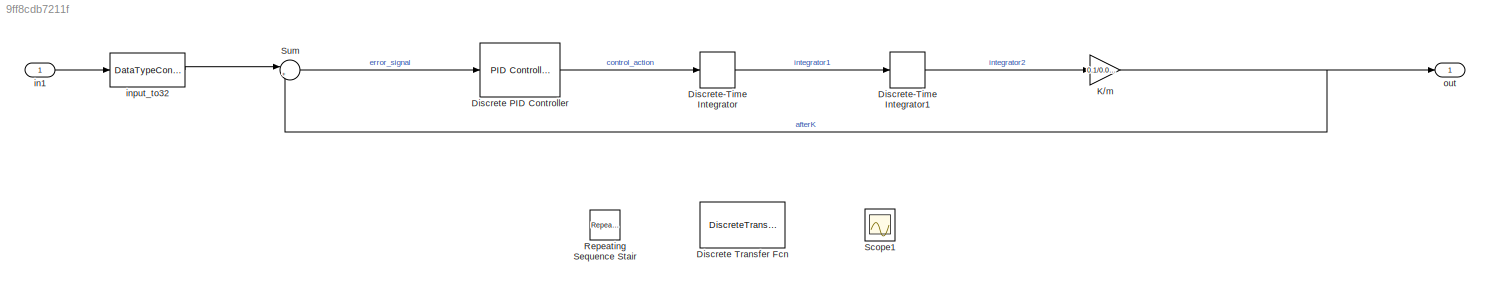
MODEL slx_9ff8cdb7211f
KIND model
CONFIG AbsTol = auto
CONFIG EnableMultiTasking = off
CONFIG FixedStep = auto
CONFIG MaxStep = auto
CONFIG MinStep = auto
CONFIG RelTol = 1e-3
CONFIG SampleTimeConstraint = Unconstrained
CONFIG SolverName = FixedStepDiscrete
CONFIG StartTime = 0.0
CONFIG StopTime = 2000
BLOCK [Reference] Discrete PID Controller  REF=slpidlib/PID Controller
  LibrarySourceBlock = hdlsllib/HDL Floating Point\nOperations/Discrete PID Controller
  SourceBlock = slpidlib/PID Controller
  SourceType = PID 1dof
BLOCK [DiscreteTransferFcn] Discrete Transfer Fcn
  Commented = on
  DenAccumDataTypeStr = fixdt(1,16,0, 'DataTypeOverride', 'Off')
  DenCoefDataTypeStr = fixdt(1,16,0, 'DataTypeOverride', 'Off')
  DenCoefMax = 4095
  DenCoefMin = 0
  DenProductDataTypeStr = fixdt(1,16,-2, 'DataTypeOverride', 'Off')
  Denominator = [1 -2 1]
  InitialStates = 2
  InputPortMap = u0
  NumAccumDataTypeStr = fixdt(1,16,0, 'DataTypeOverride', 'Off')
  NumCoefDataTypeStr = fixdt(1,16,0, 'DataTypeOverride', 'Off')
  NumCoefMax = 4095
  NumCoefMin = 0
  NumProductDataTypeStr = fixdt(1,16,0, 'DataTypeOverride', 'Off')
  OutDataTypeStr = fixdt(1,16,0, 'DataTypeOverride', 'Off')
  OutMax = 4095
  OutMin = 0
  StateDataTypeStr = fixdt(1,16,0, 'DataTypeOverride', 'Off')
  a0EqualsOne = on
BLOCK [DiscreteIntegrator] Discrete-Time Integrator
  ICPrevOutput = DiscIntNeverNeededParam
  ICPrevScaledInput = DiscIntNeverNeededParam
  InitialConditionSetting = Auto
  OutDataTypeStr = fixdt(1,32,16, 'DataTypeOverride', 'Off')
  OutMax = 4095
  OutMin = -4095
  SampleTime = 0.0078125
BLOCK [DiscreteIntegrator] Discrete-Time Integrator1
  ICPrevOutput = DiscIntNeverNeededParam
  ICPrevScaledInput = DiscIntNeverNeededParam
  InitialConditionSetting = Auto
  OutDataTypeStr = fixdt(1,32,16, 'DataTypeOverride', 'Off')
  OutMax = 4095
  OutMin = -4095
  SampleTime = 0.0078125
BLOCK [Gain] K//m
  Gain = 0.1/0.0027
  OutDataTypeStr = fixdt(1,32,16, 'DataTypeOverride', 'Off')
  ParamDataTypeStr = fixdt(1,32,16, 'DataTypeOverride', 'Off')
BLOCK [Reference] Repeating Sequence Stair  REF=simulink/Sources/Repeating
Sequence
Stair
  Commented = on
  LibrarySourceBlock = hdlsllib/Sources/Repeating\nSequence\nStair
  SourceBlock = simulink/Sources/Repeating\nSequence\nStair
  SourceType = Repeating Sequence Stair
BLOCK [Scope] Scope1
  Commented = on
  Floating = off
  NumInputPorts = 1
  ScopeSpecificationString = Simulink.scopes.TimeScopeBlockCfg('CurrentConfiguration', extmgr.ConfigurationSet(extmgr.Configuration('Core','General UI',true),extmgr.Configuration('Core','Source UI',true),extmgr.Configuration('Sources','WiredSimulink',true,'DataLoggingVariableName','ScopeData1','DataLoggingSaveFormat','Array','DataLoggingLimitDataPoints',true,'DataLoggingDecimation','1'),extmgr.Configuration('Visuals','Time Do...<+1816ch>
BLOCK [Sum] Sum
  AccumDataTypeStr = fixdt(1,32,16, 'DataTypeOverride', 'Off')
  Inputs = |+-
  OutDataTypeStr = fixdt(1,32,16, 'DataTypeOverride', 'Off')
BLOCK [Inport] in1
BLOCK [DataTypeConversion] input_to32
  OutDataTypeStr = fixdt(1,32,16, 'DataTypeOverride', 'Off')
  RndMeth = Floor
  SaturateOnIntegerOverflow = off
BLOCK [Outport] out
  OutDataTypeStr = fixdt(1,32,16, 'DataTypeOverride', 'Off')
  VarSizeSig = No
LINE Discrete PID Controller:1 -> Discrete-Time Integrator:1
LINE Discrete-Time Integrator1:1 -> K//m:1
LINE Discrete-Time Integrator:1 -> Discrete-Time Integrator1:1
NET K//m:1 -> Sum:2, out:1
LINE Sum:1 -> Discrete PID Controller:1
LINE in1:1 -> input_to32:1
LINE input_to32:1 -> Sum:1
note: NET lines group one-source signal fan-out (src -> all destinations, sorted); 1:1 wires keep LINE
